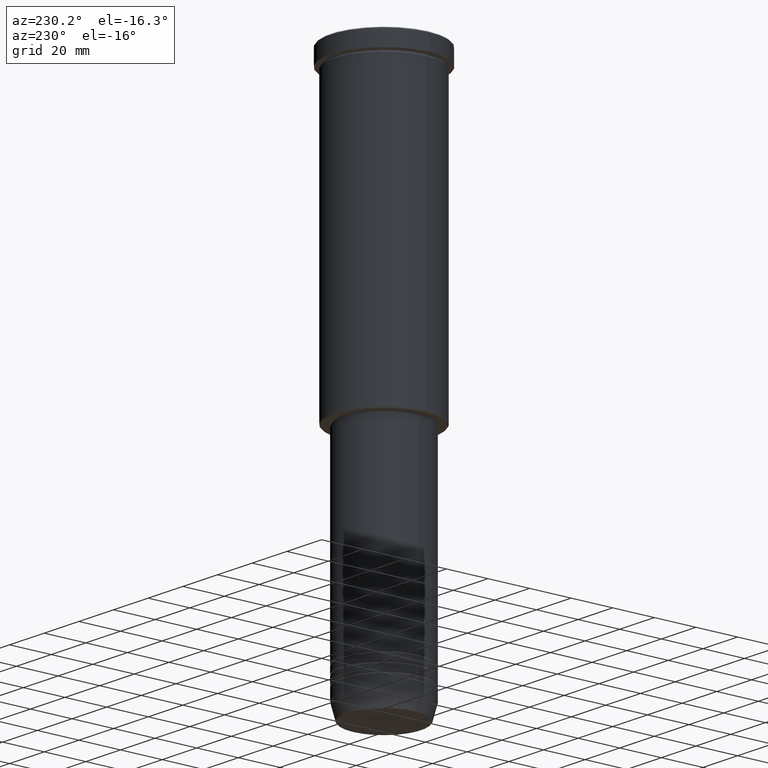
[diagram: clean part render]
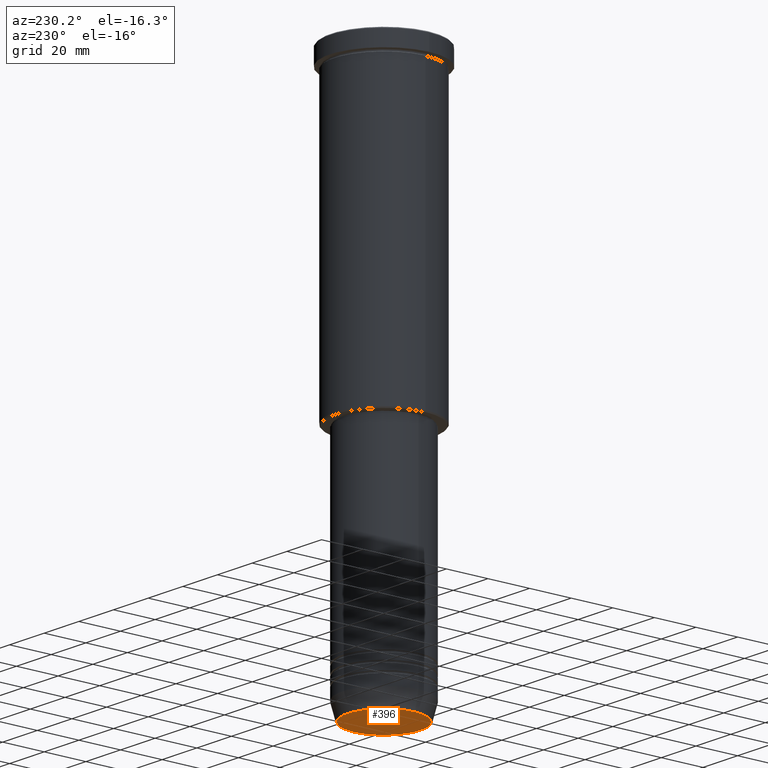
[diagram: same view with one face highlighted and labeled with its STEP entity id]
A machine part, auxiliary view. The second image highlights one B-rep face of the part: STEP entity #396.
In plain terms, the highlighted planar face has unit normal (0, -0, 1).
Its self-contained STEP definition (entity closure, byte-faithful):
#59 = CARTESIAN_POINT ( 'NONE',  ( 0.000000000000000000, 0.000000000000000000, -260.0000000000000000 ) ) ;
#115 = CARTESIAN_POINT ( 'NONE',  ( 0.000000000000000000, 0.000000000000000000, -260.0000000000000000 ) ) ;
#153 = CARTESIAN_POINT ( 'NONE',  ( -17.47274296656153680, 2.169366823916868503E-15, -260.0000000000000000 ) ) ;
#160 = AXIS2_PLACEMENT_3D ( 'NONE', #59, #1148, #1064 ) ;
#385 = DIRECTION ( 'NONE',  ( 0.000000000000000000, 0.000000000000000000, -1.000000000000000000 ) ) ;
#396 = ADVANCED_FACE ( 'NONE', ( #689 ), #774, .F. ) ;
#413 = EDGE_CURVE ( 'NONE', #432, #563, #581, .T. ) ;
#432 = VERTEX_POINT ( 'NONE', #153 ) ;
#502 = CARTESIAN_POINT ( 'NONE',  ( 0.000000000000000000, 0.000000000000000000, -260.0000000000000000 ) ) ;
#563 = VERTEX_POINT ( 'NONE', #889 ) ;
#581 = CIRCLE ( 'NONE', #160, 17.47274296656153680 ) ;
#663 = CIRCLE ( 'NONE', #955, 17.47274296656153680 ) ;
#689 = FACE_OUTER_BOUND ( 'NONE', #912, .T. ) ;
#703 = DIRECTION ( 'NONE',  ( 1.000000000000000000, 0.000000000000000000, 0.000000000000000000 ) ) ;
#774 = PLANE ( 'NONE',  #1096 ) ;
#828 = ORIENTED_EDGE ( 'NONE', *, *, #1139, .T. ) ;
#889 = CARTESIAN_POINT ( 'NONE',  ( 17.47274296656153680, 0.000000000000000000, -260.0000000000000000 ) ) ;
#912 = EDGE_LOOP ( 'NONE', ( #828, #1165 ) ) ;
#955 = AXIS2_PLACEMENT_3D ( 'NONE', #115, #385, #1119 ) ;
#963 = DIRECTION ( 'NONE',  ( 0.000000000000000000, -0.000000000000000000, 1.000000000000000000 ) ) ;
#1064 = DIRECTION ( 'NONE',  ( 1.000000000000000000, 0.000000000000000000, 0.000000000000000000 ) ) ;
#1096 = AXIS2_PLACEMENT_3D ( 'NONE', #502, #963, #703 ) ;
#1119 = DIRECTION ( 'NONE',  ( 1.000000000000000000, 0.000000000000000000, 0.000000000000000000 ) ) ;
#1139 = EDGE_CURVE ( 'NONE', #563, #432, #663, .T. ) ;
#1148 = DIRECTION ( 'NONE',  ( 0.000000000000000000, 0.000000000000000000, -1.000000000000000000 ) ) ;
#1165 = ORIENTED_EDGE ( 'NONE', *, *, #413, .T. ) ;